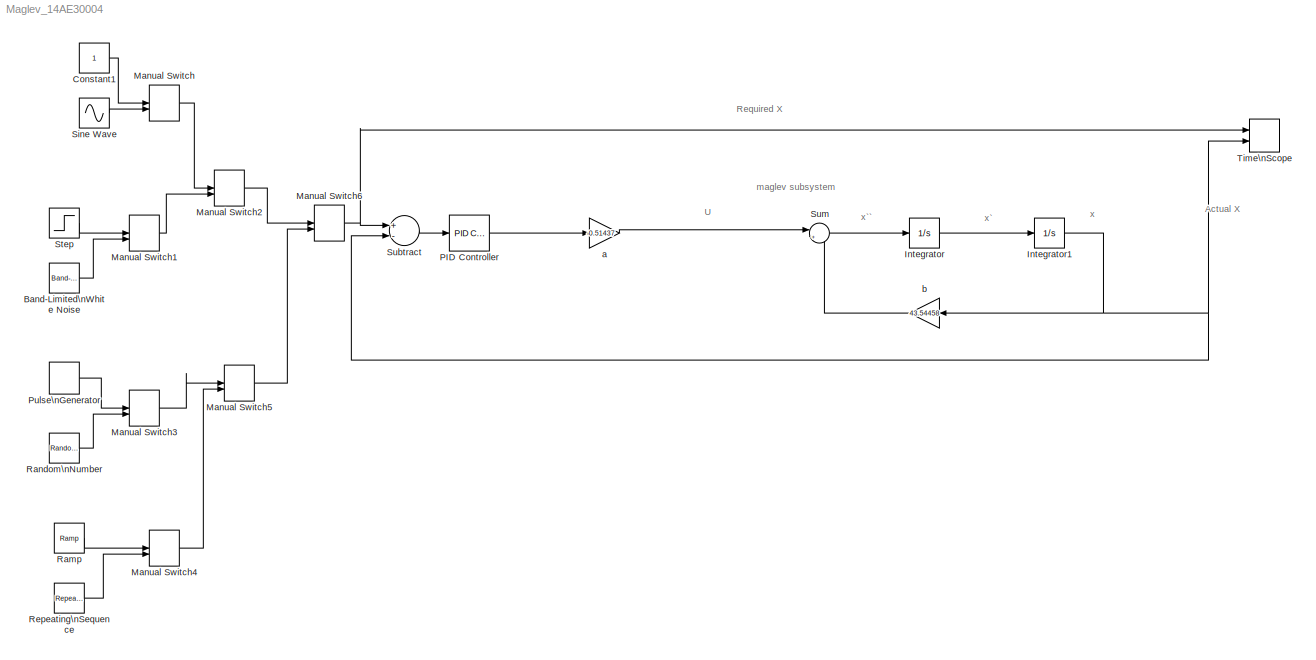
MODEL Maglev_14AE30004
KIND model
BLOCK [Reference] Band-Limited\nWhite Noise  REF=simulink/Sources/Band-Limited\nWhite Noise
  Cov = [0.1]
  Ports = [0, 1]
  SID = 1
  SourceBlock = simulink/Sources/Band-Limited\nWhite Noise
  SourceType = Band-Limited White Noise.
  Ts = 0.1
  VectorParams1D = on
  seed = [23341]
BLOCK [Constant] Constant1
  SID = 2
BLOCK [Integrator] Integrator
  Ports = [1, 1]
  SID = 8
BLOCK [Integrator] Integrator1
  Ports = [1, 1]
  SID = 9
BLOCK [ManualSwitch] Manual Switch
  CurrentSetting = 0
  SID = 3
BLOCK [ManualSwitch] Manual Switch1
  CurrentSetting = 0
  SID = 4
BLOCK [ManualSwitch] Manual Switch2
  SID = 5
BLOCK [ManualSwitch] Manual Switch3
  SID = 36
BLOCK [ManualSwitch] Manual Switch4
  SID = 37
BLOCK [ManualSwitch] Manual Switch5
  SID = 40
BLOCK [ManualSwitch] Manual Switch6
  CurrentSetting = 0
  SID = 41
BLOCK [Reference] PID Controller  REF=simulink/Continuous/PID Controller
  AntiWindupMode = none
  Controller = PID
  ControllerParametersSource = internal
  D = -134.391115123266
  DGainOutDataTypeStr = Inherit: Inherit via internal rule
  DOutDataTypeStr = Inherit: Inherit via internal rule
  DOutMax = []
  DOutMin = []
  DParamDataTypeStr = Inherit: Inherit via internal rule
  DParamMax = []
  DParamMin = []
  DProdOutDataTypeStr = Inherit: Inherit via internal rule
  DifferentiatorICPrevScaledInput = 0
  DifferentiatorOutDataTypeStr = Inherit: Inherit via internal rule
  DifferentiatorOutMax = []
  DifferentiatorOutMin = []
  ExternalReset = none
  FilterContinuousStateAttributes = ''
  FilterMethod = Forward Euler
  FilterOutDataTypeStr = Inherit: Inherit via internal rule
  FilterOutMax = []
  FilterOutMin = []
  FilterRTWStateStorageClass = Auto
  FilterStateMustResolveToSignalObject = off
  Form = Parallel
  I = -5937.87773793035
  IGainOutDataTypeStr = Inherit: Inherit via internal rule
  IOutDataTypeStr = Inherit: Inherit via internal rule
  IOutMax = []
  IOutMin = []
  IParamDataTypeStr = Inherit: Inherit via internal rule
  IParamMax = []
  IParamMin = []
  IProdOutDataTypeStr = Inherit: Inherit via internal rule
  IgnoreLimit = off
  InitialConditionForFilter = 0
  InitialConditionForIntegrator = 0
  InitialConditionSource = internal
  IntegratorContinuousStateAttributes = ''
  IntegratorMethod = Forward Euler
  IntegratorOutDataTypeStr = Inherit: Inherit via internal rule
  IntegratorOutMax = []
  IntegratorOutMin = []
  IntegratorRTWStateStorageClass = Auto
  IntegratorStateMustResolveToSignalObject = off
  Kb = 1
  KbOutDataTypeStr = Inherit: Inherit via internal rule
  KbOutMax = []
  KbOutMin = []
  KbParamDataTypeStr = Inherit: Inherit via internal rule
  KbParamMax = []
  KbParamMin = []
  Kt = 1
  KtOutDataTypeStr = Inherit: Inherit via internal rule
  KtOutMax = []
  KtOutMin = []
  KtParamDataTypeStr = Inherit: Inherit via internal rule
  KtParamMax = []
  KtParamMin = []
  LimitOutput = off
  LinearizeAsGain = on
  LockScale = off
  LowerSaturationLimit = -inf
  N = 383.735329400122
  NGainOutDataTypeStr = Inherit: Inherit via internal rule
  NOutDataTypeStr = Inherit: Inherit via internal rule
  NOutMax = []
  NOutMin = []
  NParamDataTypeStr = Inherit: Inherit via internal rule
  NParamMax = []
  NParamMin = []
  NProdOutDataTypeStr = Inherit: Inherit via internal rule
  P = -1802.72408045143
  PGainOutDataTypeStr = Inherit: Inherit via internal rule
  POutDataTypeStr = Inherit: Inherit via internal rule
  POutMax = []
  POutMin = []
  PParamDataTypeStr = Inherit: Inherit via internal rule
  PParamMax = []
  PParamMin = []
  PProdOutDataTypeStr = Inherit: Inherit via internal rule
  Ports = [1, 1]
  RndMeth = Floor
  SID = 18
  SampleTime = -1
  SaturateOnIntegerOverflow = off
  SaturationOutDataTypeStr = Inherit: Same as input
  SaturationOutMax = []
  SaturationOutMin = []
  SourceBlock = simulink/Continuous/PID Controller
  SourceType = PID 1dof
  SumAccumDataTypeStr = Inherit: Inherit via internal rule
  SumDAccumDataTypeStr = Inherit: Inherit via internal rule
  SumDOutDataTypeStr = Inherit: Inherit via internal rule
  SumDOutMax = []
  SumDOutMin = []
  SumI1AccumDataTypeStr = Inherit: Inherit via internal rule
  SumI1OutDataTypeStr = Inherit: Inherit via internal rule
  SumI1OutMax = []
  SumI1OutMin = []
  SumI2AccumDataTypeStr = Inherit: Inherit via internal rule
  SumI2OutDataTypeStr = Inherit: Inherit via internal rule
  SumI2OutMax = []
  SumI2OutMin = []
  SumI3AccumDataTypeStr = Inherit: Inherit via internal rule
  SumI3OutDataTypeStr = Inherit: Inherit via internal rule
  SumI3OutMax = []
  SumI3OutMin = []
  SumOutDataTypeStr = Inherit: Inherit via internal rule
  SumOutMax = []
  SumOutMin = []
  TimeDomain = Continuous-time
  TrackingMode = off
  UpperSaturationLimit = inf
  UseFilter = on
  ZeroCross = on
BLOCK [DiscretePulseGenerator] Pulse\nGenerator
  Period = 10
  Ports = [0, 1]
  PulseType = Time based
  PulseWidth = 5
  SID = 30
BLOCK [Reference] Ramp  REF=simulink/Sources/Ramp
  Ports = [0, 1]
  SID = 38
  SourceBlock = simulink/Sources/Ramp
  SourceType = Ramp
  VectorParams1D = on
  X0 = 0
  slope = 1
  start = 0
BLOCK [RandomNumber] Random\nNumber
  SID = 35
  SampleTime = 0.1
BLOCK [Reference] Repeating\nSequence  REF=simulink/Sources/Repeating\nSequence
  Ports = [0, 1]
  SID = 39
  SourceBlock = simulink/Sources/Repeating\nSequence
  SourceType = Repeating table
  rep_seq_t = [0 2]
  rep_seq_y = [0 2]
BLOCK [Sin] Sine Wave
  Ports = [0, 1]
  SID = 6
  SampleTime = 0
BLOCK [Step] Step
  SID = 7
  SampleTime = 0
BLOCK [Sum] Subtract
  InputSameDT = off
  Inputs = +-
  OutDataTypeStr = Inherit: Inherit via internal rule
  Ports = [2, 1]
  SID = 19
  SaturateOnIntegerOverflow = off
BLOCK [Sum] Sum
  IconShape = round
  InputSameDT = off
  Inputs = |++
  OutDataTypeStr = Inherit: Inherit via internal rule
  Ports = [2, 1]
  SID = 14
  SaturateOnIntegerOverflow = off
BLOCK [TimeScope] Time\nScope
  DefaultConfigurationName = spbscopes.TimeScopeBlockCfg
  NumInputPorts = 2
  Ports = [2]
  SID = 20
  ScopeSpecificationString = spbscopes.TimeScopeBlockCfg('CurrentConfiguration', extmgr.ConfigurationSet(extmgr.Configuration('Core','General UI',true),extmgr.Configuration('Core','Source UI',true),extmgr.Configuration('Sources','WiredSimulink',true),extmgr.Configuration('Visuals','Time Domain',true,'DisplayPropertyDefaults',struct('MinYLimReal','-0.320009','MaxYLimReal','1.32303','YLabelReal','Amplitude','MinYLimMag','0','Ma...<+1388ch>
  UserDataPersistent = on
BLOCK [Gain] a
  Gain = -0.51437
  OutDataTypeStr = Inherit: Inherit via internal rule
  ParamDataTypeStr = Inherit: Inherit via internal rule
  SID = 17
  SaturateOnIntegerOverflow = off
BLOCK [Gain] b
  Gain = 43.54458
  OutDataTypeStr = Inherit: Inherit via internal rule
  ParamDataTypeStr = Inherit: Inherit via internal rule
  SID = 13
  SaturateOnIntegerOverflow = off
ANNOTATION (root): Actual X
ANNOTATION (root): Required X
ANNOTATION (root): U
ANNOTATION (root): maglev subsystem
ANNOTATION (root): x
ANNOTATION (root): x`
ANNOTATION (root): x``
LINE Band-Limited\nWhite Noise:1 -> Manual Switch1:2
LINE Constant1:1 -> Manual Switch:1
NET Integrator1:1 -> Subtract:2, Time\nScope:2, b:1
LINE Integrator:1 -> Integrator1:1
LINE Manual Switch1:1 -> Manual Switch2:2
LINE Manual Switch2:1 -> Manual Switch6:1
LINE Manual Switch3:1 -> Manual Switch5:1
LINE Manual Switch4:1 -> Manual Switch5:2
LINE Manual Switch5:1 -> Manual Switch6:2
NET Manual Switch6:1 -> Subtract:1, Time\nScope:1
LINE Manual Switch:1 -> Manual Switch2:1
LINE PID Controller:1 -> a:1
LINE Pulse\nGenerator:1 -> Manual Switch3:1
LINE Ramp:1 -> Manual Switch4:1
LINE Random\nNumber:1 -> Manual Switch3:2
LINE Repeating\nSequence:1 -> Manual Switch4:2
LINE Sine Wave:1 -> Manual Switch:2
LINE Step:1 -> Manual Switch1:1
LINE Subtract:1 -> PID Controller:1
LINE Sum:1 -> Integrator:1
LINE a:1 -> Sum:1
LINE b:1 -> Sum:2
note: NET lines group one-source signal fan-out (src -> all destinations, sorted); 1:1 wires keep LINE
